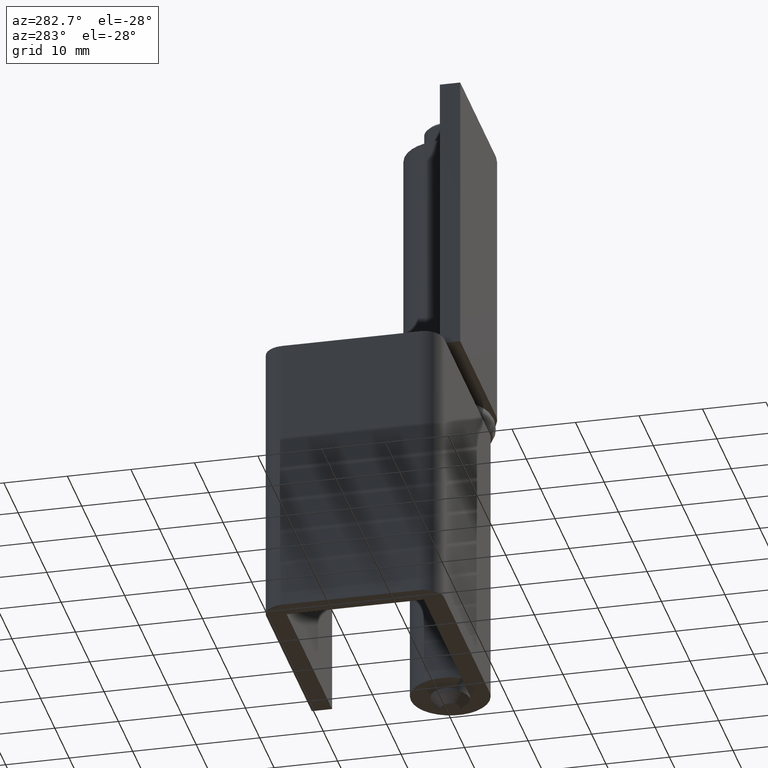
[diagram: clean part render]
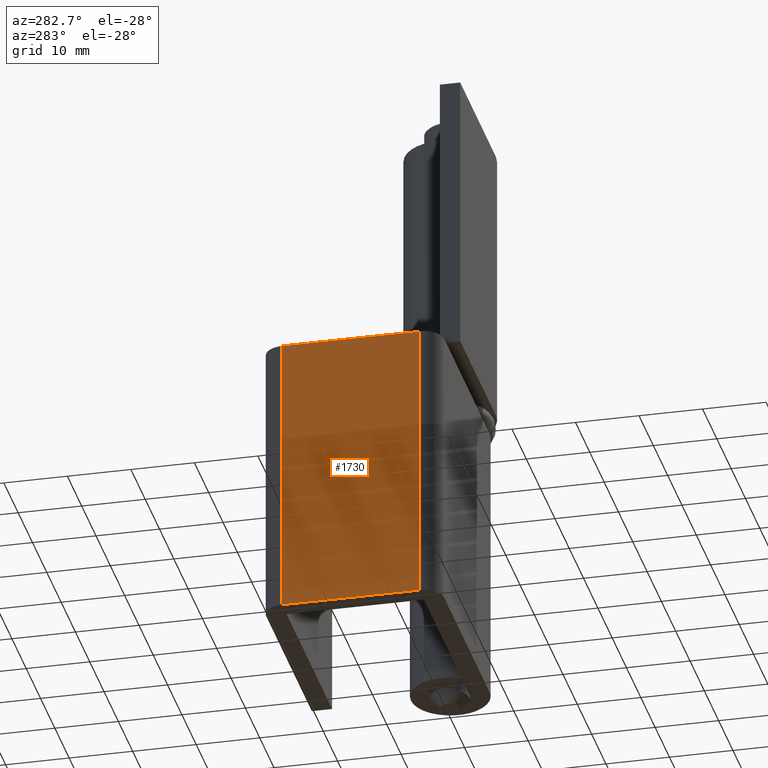
[diagram: same view with one face highlighted and labeled with its STEP entity id]
A machine part, auxiliary view. The second image highlights one B-rep face of the part: STEP entity #1730.
In plain terms, the highlighted face is a freeform B-spline surface patch.
Its self-contained STEP definition (entity closure, byte-faithful):
#1368=CARTESIAN_POINT('',(-35.0,-3.004381779363510,2.0));
#1369=VERTEX_POINT('',#1368);
#1383=CARTESIAN_POINT('',(-35.000003000000000,18.600002279252699,2.0));
#1384=VERTEX_POINT('',#1383);
#1385=CARTESIAN_POINT('',(-35.000003000000000,18.600002279252699,2.0));
#1386=CARTESIAN_POINT('',(-35.0,-3.004381779363510,2.0));
#1387=QUASI_UNIFORM_CURVE('',1,(#1385,#1386),.UNSPECIFIED.,.F.,.U.);
#1388=EDGE_CURVE('',#1384,#1369,#1387,.T.);
#1448=CARTESIAN_POINT('',(-35.000003000000000,18.600002279252699,47.0));
#1449=VERTEX_POINT('',#1448);
#1463=CARTESIAN_POINT('',(-35.0,-3.004381779363510,47.0));
#1464=VERTEX_POINT('',#1463);
#1465=CARTESIAN_POINT('',(-35.000003000000000,18.600002279252699,47.0));
#1466=CARTESIAN_POINT('',(-35.0,-3.004381779363510,47.0));
#1467=QUASI_UNIFORM_CURVE('',1,(#1465,#1466),.UNSPECIFIED.,.F.,.U.);
#1468=EDGE_CURVE('',#1449,#1464,#1467,.T.);
#1707=CARTESIAN_POINT('',(-35.0,-3.004381779363510,47.0));
#1708=CARTESIAN_POINT('',(-35.0,-3.004381779363510,2.0));
#1709=QUASI_UNIFORM_CURVE('',1,(#1707,#1708),.UNSPECIFIED.,.F.,.U.);
#1710=EDGE_CURVE('',#1464,#1369,#1709,.T.);
#1715=CARTESIAN_POINT('',(-35.0,-4.083520924024398,49.247749912781281));
#1716=CARTESIAN_POINT('',(-35.0,-4.083520924024398,-0.247751119775324));
#1717=CARTESIAN_POINT('',(-35.0,19.679141810230089,49.247749912781281));
#1718=CARTESIAN_POINT('',(-35.0,19.679141810230089,-0.247751119775324));
#1719=B_SPLINE_SURFACE_WITH_KNOTS('',1,1,((#1715,#1717),(#1716,#1718)),.UNSPECIFIED.,.F.,.F.,.U.,(2,2),(2,2),(0.0,49.495501032556596),(0.0,23.762662734254480),.UNSPECIFIED.);
#1720=ORIENTED_EDGE('',*,*,#1388,.T.);
#1721=ORIENTED_EDGE('',*,*,#1710,.F.);
#1722=ORIENTED_EDGE('',*,*,#1468,.F.);
#1723=CARTESIAN_POINT('',(-35.000003000000000,18.600002279252699,47.0));
#1724=CARTESIAN_POINT('',(-35.000003000000000,18.600002279252699,2.0));
#1725=QUASI_UNIFORM_CURVE('',1,(#1723,#1724),.UNSPECIFIED.,.F.,.U.);
#1726=EDGE_CURVE('',#1449,#1384,#1725,.T.);
#1727=ORIENTED_EDGE('',*,*,#1726,.T.);
#1728=EDGE_LOOP('',(#1720,#1721,#1722,#1727));
#1729=FACE_OUTER_BOUND('',#1728,.T.);
#1730=ADVANCED_FACE('',(#1729),#1719,.F.);